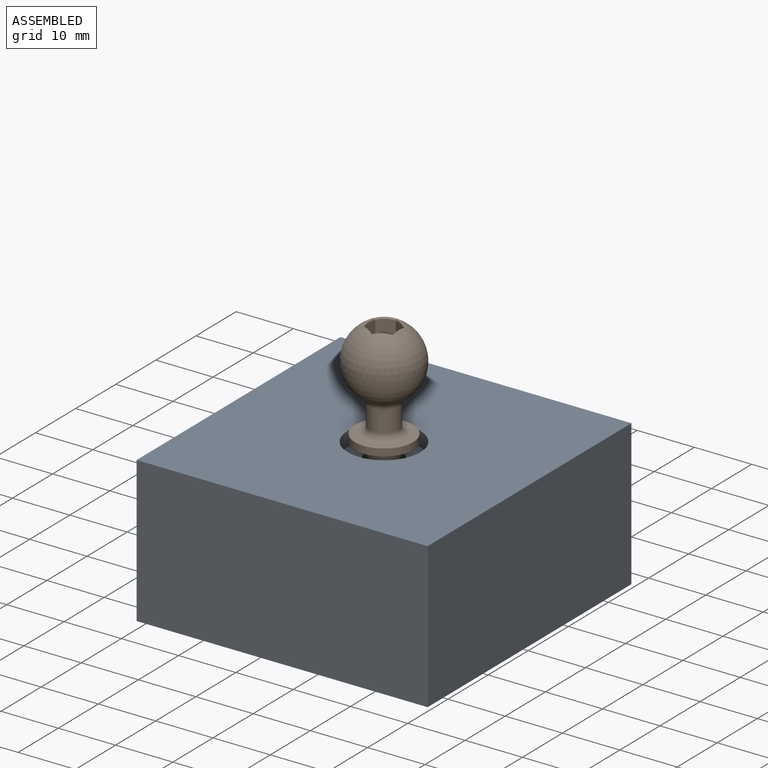
[diagram: assembled view]
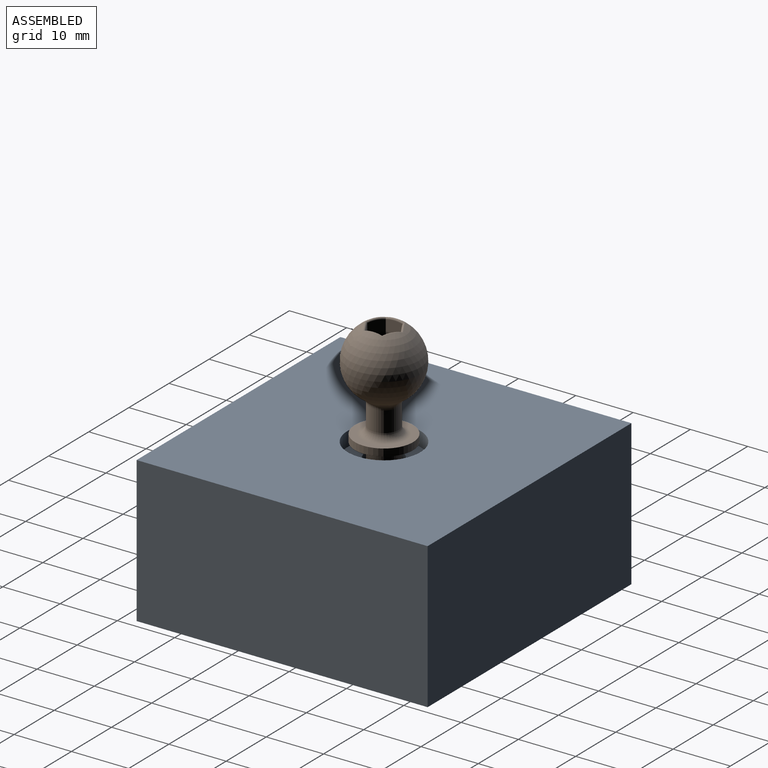
[diagram: assembled view, second angle]
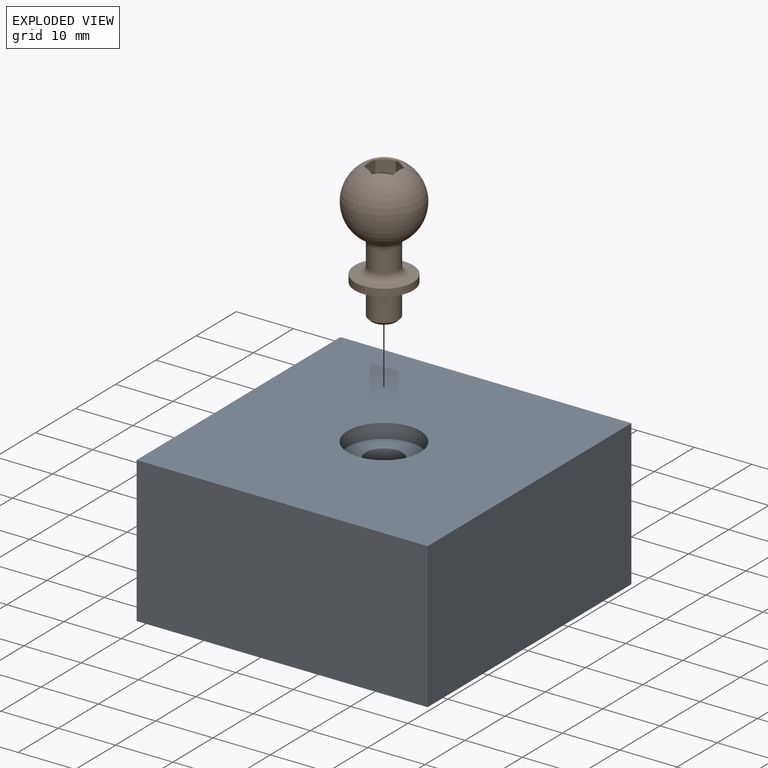
[diagram: exploded view]
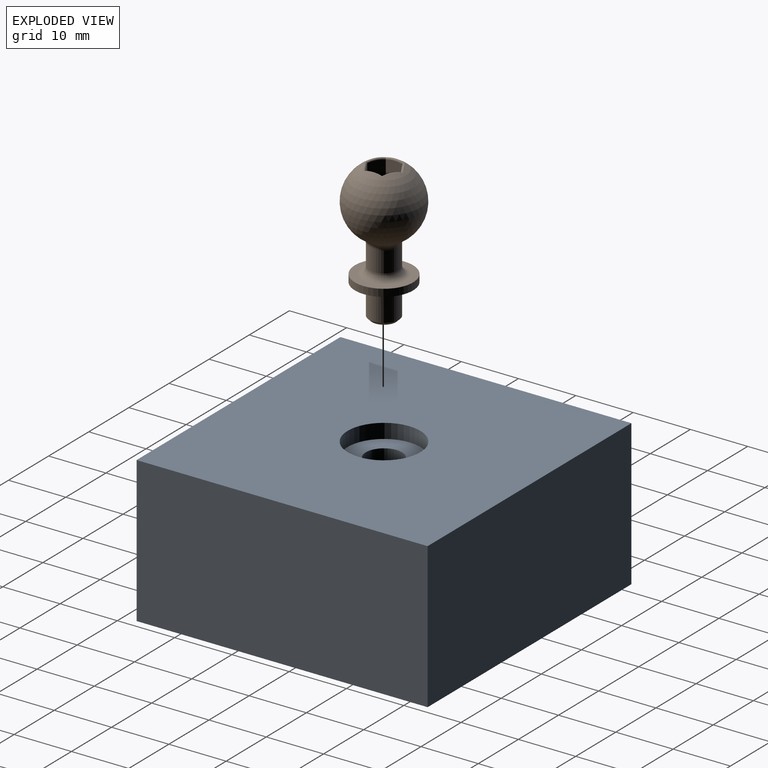
[diagram: exploded view, second angle]
ASSEMBLY  parts=2 mates=2
PART A: 10 faces, bbox 50.8x50.8x25.4 mm
  f0: plane 50.8x25.4mm, normal (0,-1,0), area 1290.3mm2, adj f1,f3,f4,f5
  f1: plane 50.8x25.4mm, normal (1,0,0), area 1290.3mm2, adj f0,f2,f4,f5
  f2: plane 50.8x25.4mm, normal (0,1,0), area 1290.3mm2, adj f1,f3,f4,f5
  f3: plane 50.8x25.4mm, normal (-1,0,0), area 1290.3mm2, adj f0,f2,f4,f5
  f4: plane 50.8x50.8mm, normal (0,0,-1), area 2580.6mm2, adj f0,f1,f2,f3
  f5: plane 50.8x50.8mm, normal (0,0,1), area 2454mm2, adj f0,f1,f2,f3,f7
  f6: plane 12.7x12.7mm, normal (0,0,1), area 95mm2, adj f7,f9
  f7: cylinder r=6.35mm len=12.7mm, axis (0,0,1), area 101.3mm2, adj f5,f6
  f8: plane 6.35x6.35mm, normal (0,0,1), area 31.7mm2, adj f9
  f9: cylinder r=3.17mm len=10.16mm, axis (0,0,1), area 202.7mm2, adj f6,f8
PART B: 25 faces, bbox 12.7x12.7x24.6 mm
  f0: sphere r=6.35mm, area 440.4mm2, adj f14,f15,f16,f17,f18,f19,f20
  f1: cylinder r=2.59mm len=5.19mm, axis (0,0,-1), area 58.6mm2, adj f20,f21
  f2: plane 10.16x10.16mm, normal (0,0,1), area 34.2mm2, adj f3,f21
  f3: cylinder r=5.08mm len=10.16mm, axis (0,0,-1), area 40.5mm2, adj f2,f4
  f4: plane 10.16x10.16mm, normal (0,0,-1), area 59.9mm2, adj f3,f5
  f5: cylinder r=2.59mm len=5.29mm, axis (0,0,-1), area 86.2mm2, adj f4,f24
  f6: plane 4.17x4.17mm, normal (0,0,-1), area 8.6mm2, adj f23,f24
  f7: plane 2.88x2.54mm, normal (0.5,0.87,0), area 8.2mm2, adj f8,f12,f13,f19
  f8: plane 2.88x2.54mm, normal (-0.5,0.87,0), area 8.2mm2, adj f7,f9,f13,f18
  f9: plane 2.93x2.88mm, normal (-1,0,0), area 8.2mm2, adj f8,f10,f13,f16
  f10: plane 2.88x2.54mm, normal (-0.5,-0.87,0), area 8.2mm2, adj f9,f11,f13,f14
  f11: plane 2.88x2.54mm, normal (0.5,-0.87,0), area 8.2mm2, adj f10,f12,f13,f15
  f12: plane 2.93x2.88mm, normal (1,0,0), area 8.2mm2, adj f7,f11,f13,f17
  f13: plane 5.87x5.08mm, normal (0,0,1), area 22.3mm2, adj f7,f8,f9,f10,f11,f12
  f14: torus R=5.42mm, axis (0.5,0.87,0), area 1.6mm2, adj f0,f10,f15,f16
  f15: torus R=5.42mm, axis (-0.5,0.87,0), area 1.6mm2, adj f0,f11,f14,f17
  f16: torus R=5.42mm, axis (1,0,0), area 1.6mm2, adj f0,f9,f14,f18
  f17: torus R=5.42mm, axis (-1,0,0), area 1.6mm2, adj f0,f12,f15,f19
  f18: torus R=5.42mm, axis (0.5,-0.87,0), area 1.6mm2, adj f0,f8,f16,f19
  f19: torus R=5.42mm, axis (-0.5,-0.87,0), area 1.6mm2, adj f0,f7,f17,f18
  f20: torus R=3.86mm, axis (0,0,1), area 23.3mm2, adj f0,f1
  f21: torus R=3.86mm, axis (0,0,-1), area 38.3mm2, adj f1,f2
  f22: cone r=0mm half-angle=59deg, axis (0,0,-1), area 5.9mm2, adj f23
  f23: cylinder r=1.27mm len=12.7mm, axis (0,0,-1), area 101.3mm2, adj f6,f22
  f24: cone r=2.09mm half-angle=45deg, axis (0,0,1), area 10.6mm2, adj f5,f6
PLACE A rot(axis=(-0.42,-0.38,-0.82),0deg) t=(-44.66,-40.71,-23.2)mm
PLACE B rot(axis=(-0.42,-0.38,-0.82),0deg) t=(-44.66,-40.71,-10.5)mm
MATE planar A.f7 <-> B.f1  axis (0,0,1) through (-44.66,-40.71,-23.2)mm
MATE slider B.f1 <-> A.f9  axis (0,0,-1) through (-44.66,-40.71,-28.49)mm
